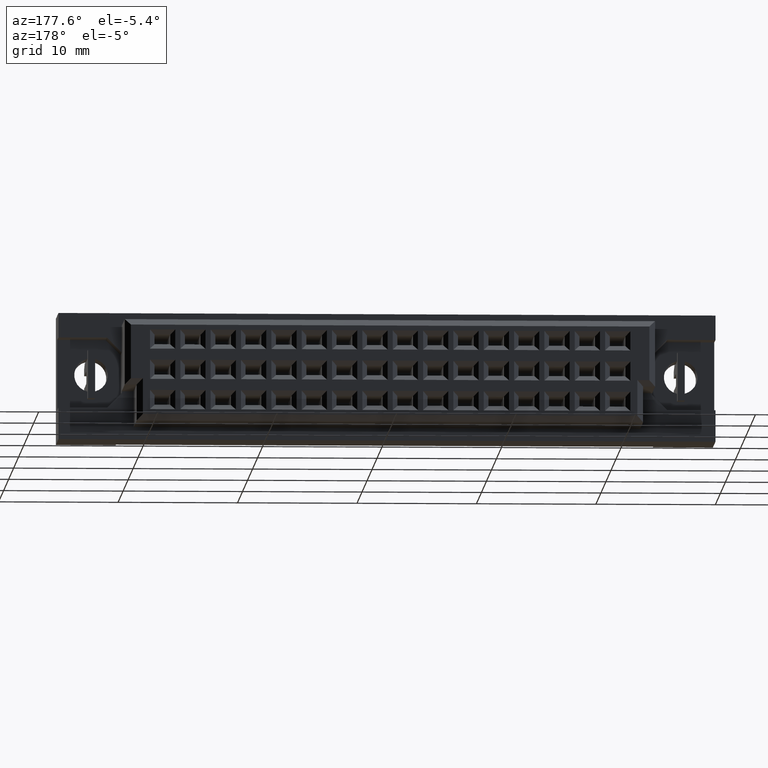
[diagram: clean part render]
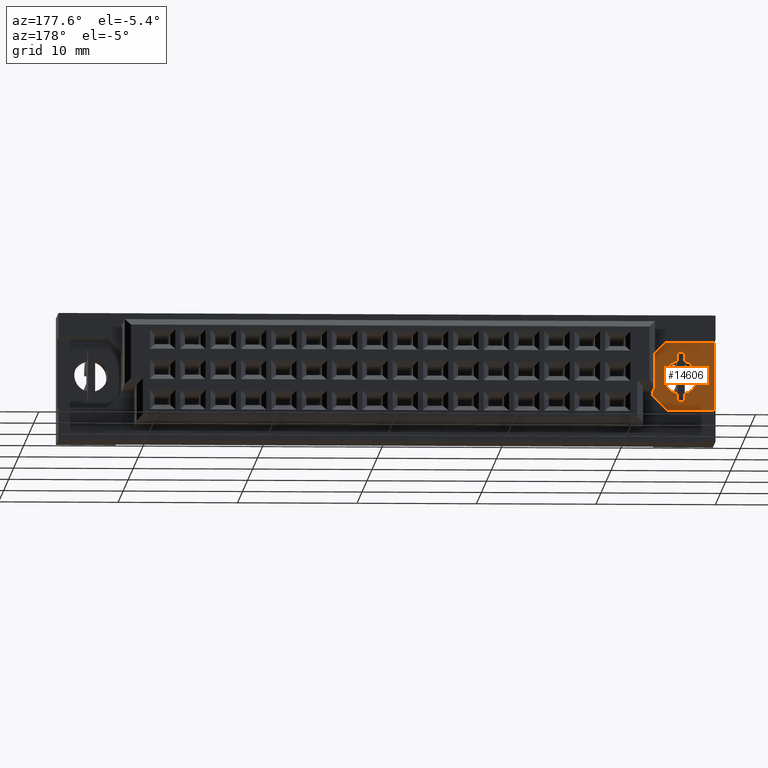
[diagram: same view with one face highlighted and labeled with its STEP entity id]
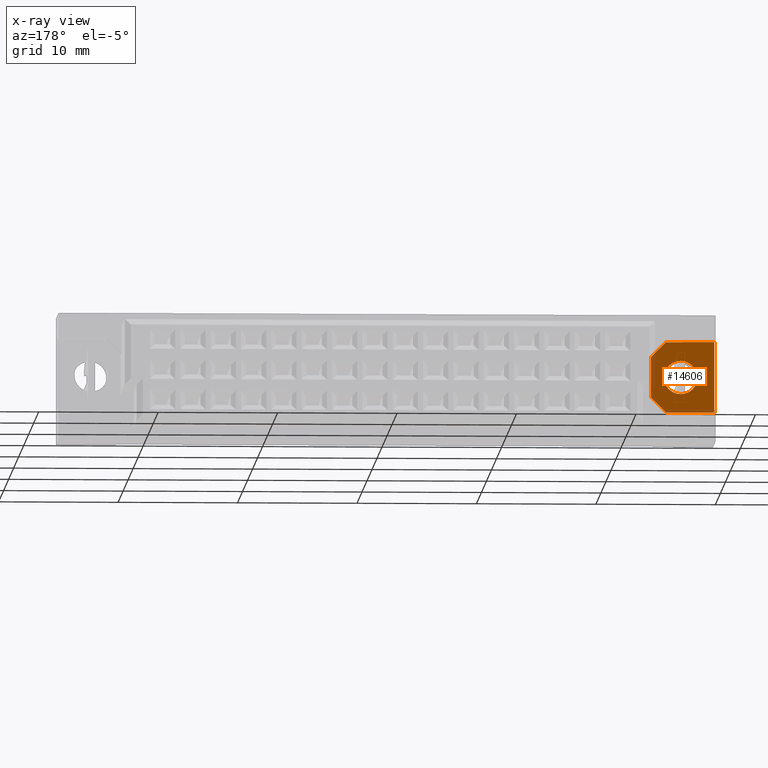
[diagram: x-ray of the same camera — body ghosted, the highlighted face saturated]
A machine part, auxiliary view. The second image highlights one B-rep face of the part: STEP entity #14606.
The next image is the same camera in x-ray: the body ghosted, the highlighted face saturated — about 4% of this face is hidden behind the body in this view.
In plain terms, the highlighted planar face has unit normal (0, 1, 0).
Its self-contained STEP definition (entity closure, byte-faithful):
#128 = CARTESIAN_POINT ( 'NONE',  ( -27.50000000000000355, -8.700000000000001066, -2.649999999999994582 ) ) ;
#461 = DIRECTION ( 'NONE',  ( 0.0000000000000000000, 1.000000000000000000, 6.123031769111886291E-17 ) ) ;
#1410 = PLANE ( 'NONE',  #2074 ) ;
#1539 = AXIS2_PLACEMENT_3D ( 'NONE', #10693, #17165, #6021 ) ;
#1837 = CARTESIAN_POINT ( 'NONE',  ( -24.67999999999999972, -8.700000000000001066, 0.3000000000000029310 ) ) ;
#2074 = AXIS2_PLACEMENT_3D ( 'NONE', #6271, #7852, #12734 ) ;
#2262 = ORIENTED_EDGE ( 'NONE', *, *, #14024, .T. ) ;
#2635 = LINE ( 'NONE', #10781, #8176 ) ;
#3392 = LINE ( 'NONE', #128, #11607 ) ;
#3547 = CARTESIAN_POINT ( 'NONE',  ( -23.44999999999999218, -8.700000000000001066, -2.649999999999994582 ) ) ;
#3621 = CARTESIAN_POINT ( 'NONE',  ( -23.44999999999999218, -8.700000000000001066, 3.250000000000001332 ) ) ;
#4183 = EDGE_CURVE ( 'NONE', #4204, #10136, #13150, .T. ) ;
#4204 = VERTEX_POINT ( 'NONE', #3621 ) ;
#5093 = DIRECTION ( 'NONE',  ( 0.7071067811865474617, 0.0000000000000000000, -0.7071067811865474617 ) ) ;
#5204 = CARTESIAN_POINT ( 'NONE',  ( -23.44999999999999218, -8.700000000000001066, 3.250000000000001332 ) ) ;
#5231 = CIRCLE ( 'NONE', #10302, 1.399999999999995692 ) ;
#5427 = EDGE_CURVE ( 'NONE', #13236, #17804, #9644, .T. ) ;
#5501 = CARTESIAN_POINT ( 'NONE',  ( -27.50000000000000355, -8.700000000000001066, 3.250000000000001776 ) ) ;
#5607 = VECTOR ( 'NONE', #8856, 1000.000000000000000 ) ;
#6021 = DIRECTION ( 'NONE',  ( 0.0000000000000000000, 0.0000000000000000000, 1.000000000000000000 ) ) ;
#6262 = ORIENTED_EDGE ( 'NONE', *, *, #9490, .F. ) ;
#6271 = CARTESIAN_POINT ( 'NONE',  ( -27.50000000000000355, -8.700000000000001066, 3.250000000000001776 ) ) ;
#7160 = LINE ( 'NONE', #19986, #5607 ) ;
#7527 = VERTEX_POINT ( 'NONE', #16229 ) ;
#7852 = DIRECTION ( 'NONE',  ( -0.0000000000000000000, 1.000000000000000000, 0.0000000000000000000 ) ) ;
#8176 = VECTOR ( 'NONE', #17250, 1000.000000000000000 ) ;
#8268 = VECTOR ( 'NONE', #8424, 1000.000000000000000 ) ;
#8326 = ORIENTED_EDGE ( 'NONE', *, *, #19552, .T. ) ;
#8361 = EDGE_LOOP ( 'NONE', ( #6262, #12743 ) ) ;
#8424 = DIRECTION ( 'NONE',  ( -0.7071067811865479058, -0.0000000000000000000, -0.7071067811865472397 ) ) ;
#8856 = DIRECTION ( 'NONE',  ( 0.0000000000000000000, 0.0000000000000000000, 1.000000000000000000 ) ) ;
#9490 = EDGE_CURVE ( 'NONE', #17804, #13236, #5231, .T. ) ;
#9644 = CIRCLE ( 'NONE', #1539, 1.399999999999995692 ) ;
#10136 = VERTEX_POINT ( 'NONE', #15774 ) ;
#10302 = AXIS2_PLACEMENT_3D ( 'NONE', #1837, #461, #14758 ) ;
#10693 = CARTESIAN_POINT ( 'NONE',  ( -24.67999999999999972, -8.700000000000001066, 0.3000000000000029310 ) ) ;
#10781 = CARTESIAN_POINT ( 'NONE',  ( -22.19999999999999218, -8.700000000000001066, -1.399999999999994582 ) ) ;
#11416 = ORIENTED_EDGE ( 'NONE', *, *, #4183, .T. ) ;
#11536 = VECTOR ( 'NONE', #11969, 1000.000000000000000 ) ;
#11607 = VECTOR ( 'NONE', #16320, 1000.000000000000000 ) ;
#11887 = EDGE_CURVE ( 'NONE', #7527, #18705, #7160, .T. ) ;
#11969 = DIRECTION ( 'NONE',  ( 1.000000000000000000, 0.0000000000000000000, -1.070816960479507419E-16 ) ) ;
#12734 = DIRECTION ( 'NONE',  ( 0.0000000000000000000, -0.0000000000000000000, 1.000000000000000000 ) ) ;
#12743 = ORIENTED_EDGE ( 'NONE', *, *, #5427, .F. ) ;
#13150 = LINE ( 'NONE', #5204, #19586 ) ;
#13236 = VERTEX_POINT ( 'NONE', #16996 ) ;
#13245 = VERTEX_POINT ( 'NONE', #15081 ) ;
#14024 = EDGE_CURVE ( 'NONE', #18705, #4204, #18320, .T. ) ;
#14118 = FACE_OUTER_BOUND ( 'NONE', #15487, .T. ) ;
#14606 = ADVANCED_FACE ( 'NONE', ( #15703, #14118 ), #1410, .T. ) ;
#14758 = DIRECTION ( 'NONE',  ( 0.0000000000000000000, 0.0000000000000000000, 1.000000000000000000 ) ) ;
#15065 = ORIENTED_EDGE ( 'NONE', *, *, #11887, .T. ) ;
#15081 = CARTESIAN_POINT ( 'NONE',  ( -23.44999999999999218, -8.700000000000001066, -2.649999999999994582 ) ) ;
#15406 = EDGE_CURVE ( 'NONE', #10136, #20905, #2635, .T. ) ;
#15487 = EDGE_LOOP ( 'NONE', ( #15065, #2262, #11416, #17562, #20103, #8326 ) ) ;
#15703 = FACE_BOUND ( 'NONE', #8361, .T. ) ;
#15774 = CARTESIAN_POINT ( 'NONE',  ( -22.19999999999999218, -8.700000000000001066, 2.000000000000000000 ) ) ;
#16229 = CARTESIAN_POINT ( 'NONE',  ( -27.50000000000000355, -8.700000000000001066, -2.649999999999994582 ) ) ;
#16261 = CARTESIAN_POINT ( 'NONE',  ( -27.50000000000000355, -8.700000000000001066, 3.250000000000001776 ) ) ;
#16320 = DIRECTION ( 'NONE',  ( -1.000000000000000000, -0.0000000000000000000, -0.0000000000000000000 ) ) ;
#16996 = CARTESIAN_POINT ( 'NONE',  ( -24.67999999999999972, -8.700000000000001066, -1.099999999999992761 ) ) ;
#17165 = DIRECTION ( 'NONE',  ( 0.0000000000000000000, 1.000000000000000000, 6.123031769111886291E-17 ) ) ;
#17250 = DIRECTION ( 'NONE',  ( -0.0000000000000000000, -0.0000000000000000000, -1.000000000000000000 ) ) ;
#17562 = ORIENTED_EDGE ( 'NONE', *, *, #15406, .T. ) ;
#17804 = VERTEX_POINT ( 'NONE', #18784 ) ;
#18059 = LINE ( 'NONE', #3547, #8268 ) ;
#18320 = LINE ( 'NONE', #5501, #11536 ) ;
#18705 = VERTEX_POINT ( 'NONE', #16261 ) ;
#18766 = EDGE_CURVE ( 'NONE', #20905, #13245, #18059, .T. ) ;
#18784 = CARTESIAN_POINT ( 'NONE',  ( -24.67999999999999972, -8.700000000000001066, 1.699999999999998623 ) ) ;
#19231 = CARTESIAN_POINT ( 'NONE',  ( -22.19999999999999218, -8.700000000000001066, -1.399999999999994582 ) ) ;
#19552 = EDGE_CURVE ( 'NONE', #13245, #7527, #3392, .T. ) ;
#19586 = VECTOR ( 'NONE', #5093, 1000.000000000000114 ) ;
#19986 = CARTESIAN_POINT ( 'NONE',  ( -27.50000000000000355, -8.700000000000001066, -2.649999999999994582 ) ) ;
#20103 = ORIENTED_EDGE ( 'NONE', *, *, #18766, .T. ) ;
#20905 = VERTEX_POINT ( 'NONE', #19231 ) ;